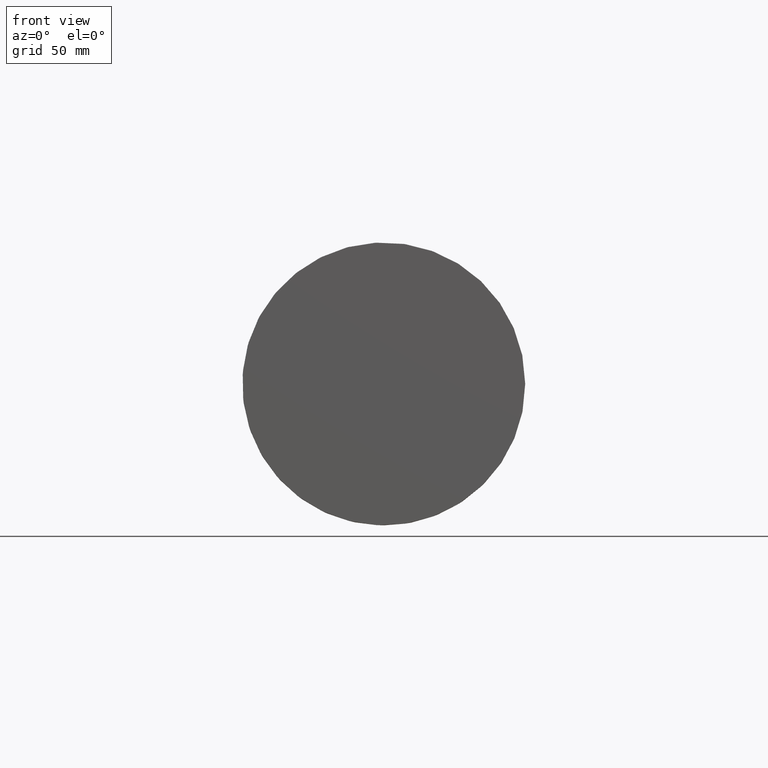
[diagram: clean part render]
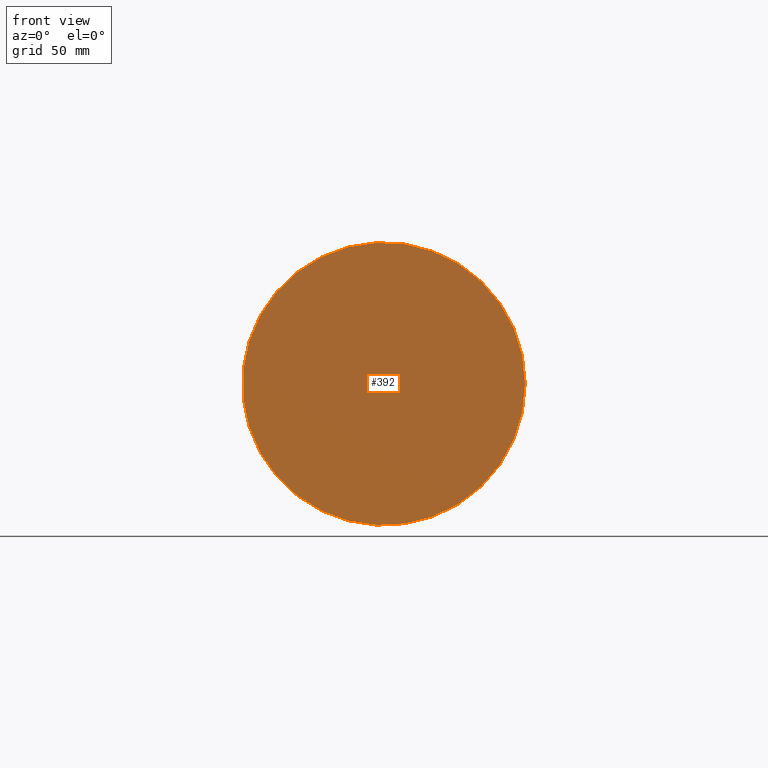
[diagram: same view with one face highlighted and labeled with its STEP entity id]
A machine part, front view. The second image highlights one B-rep face of the part: STEP entity #392.
In plain terms, the highlighted planar face has unit normal (0, -1, 0).
Its self-contained STEP definition (entity closure, byte-faithful):
#54=PLANE('',#495);
#102=FACE_OUTER_BOUND('',#128,.T.);
#128=EDGE_LOOP('',(#306));
#161=CIRCLE('',#493,60.);
#185=VERTEX_POINT('',#684);
#230=EDGE_CURVE('',#185,#185,#161,.T.);
#306=ORIENTED_EDGE('',*,*,#230,.F.);
#392=ADVANCED_FACE('',(#102),#54,.T.);
#493=AXIS2_PLACEMENT_3D('',#686,#574,#575);
#495=AXIS2_PLACEMENT_3D('',#734,#578,#579);
#574=DIRECTION('center_axis',(0.,1.,0.));
#575=DIRECTION('ref_axis',(-1.,0.,0.));
#578=DIRECTION('center_axis',(0.,-1.,0.));
#579=DIRECTION('ref_axis',(0.,0.,-1.));
#684=CARTESIAN_POINT('',(60.,0.,7.34788079488412E-15));
#686=CARTESIAN_POINT('Origin',(0.,0.,0.));
#734=CARTESIAN_POINT('Origin',(-25.,0.,-6.12303176911189E-15));